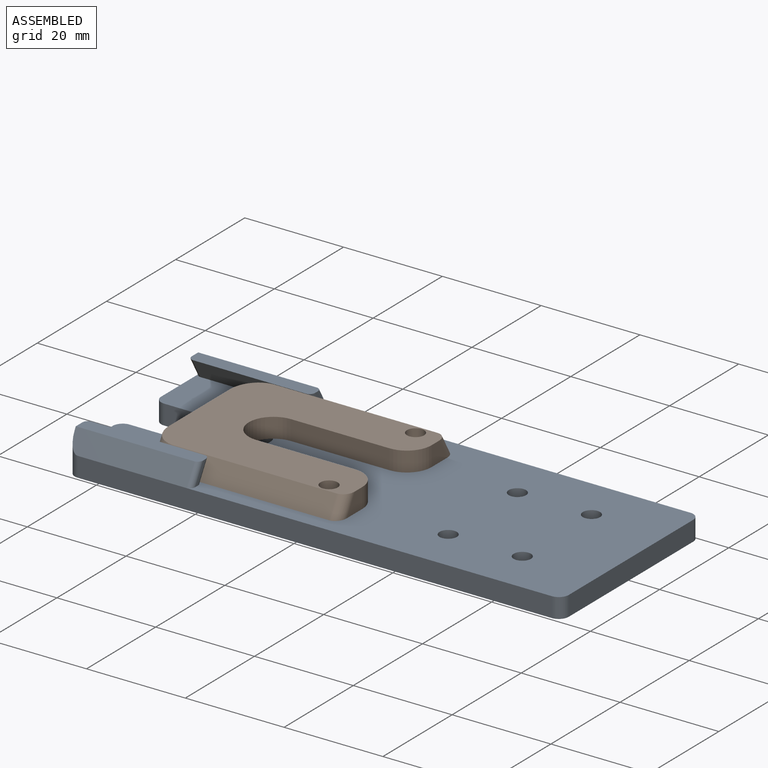
[diagram: assembled view]
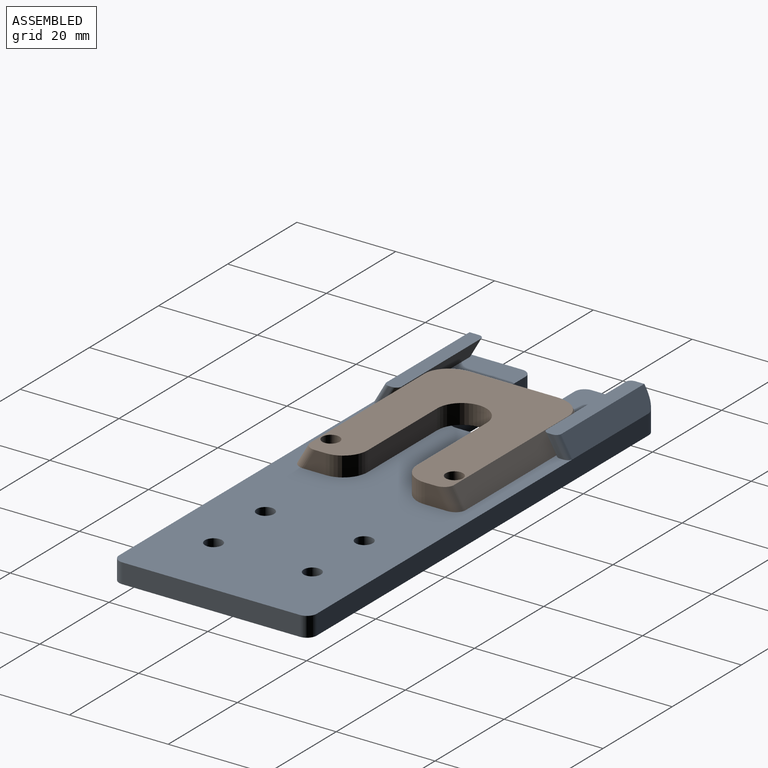
[diagram: assembled view, second angle]
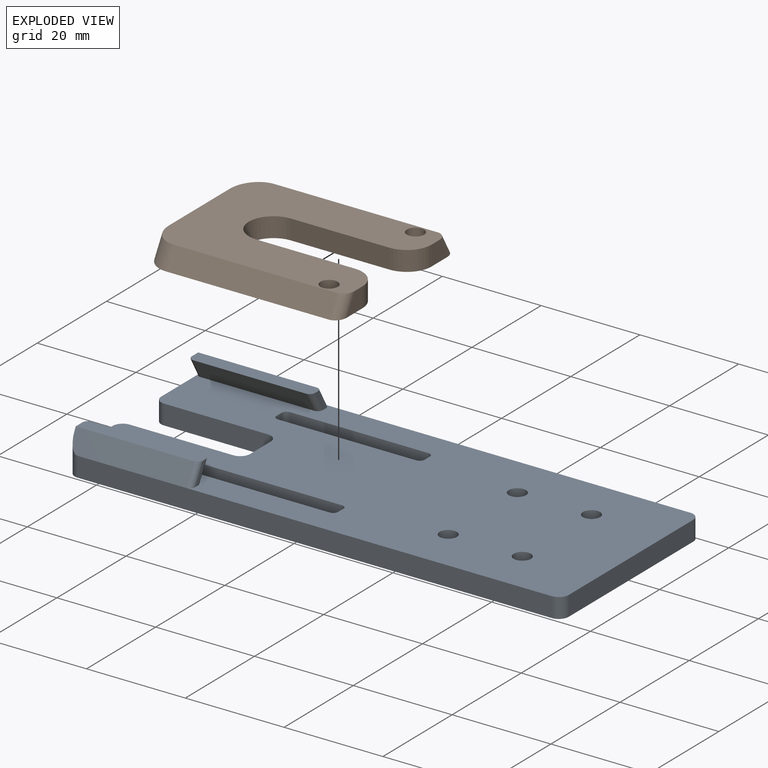
[diagram: exploded view]
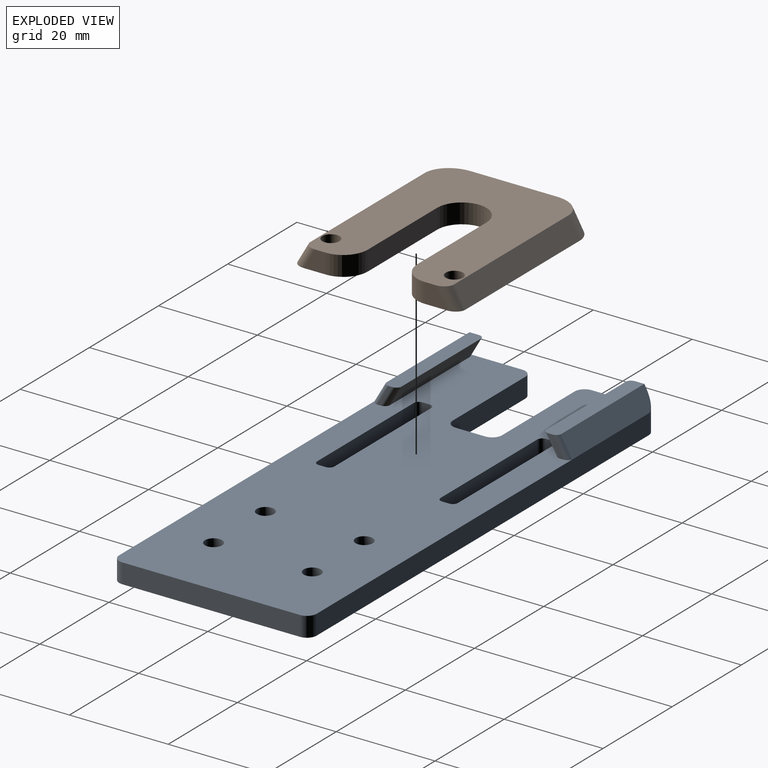
[diagram: exploded view, second angle]
ASSEMBLY  parts=2 mates=2
PART A: 54 faces, bbox 100x40x8.5 mm
  f0: plane 11x4mm, normal (-1,0,0), area 44mm2, adj f2,f3,f36,f38
  f1: plane 3.73x2.15mm, normal (-1,0,0), area 3.9mm2, adj f28,f30,f34,f48
  f2: plane 100x40mm, normal (0,0,1), area 3353mm2, adj f0,f4,f6,f7,f8,f9,f10,f11
  f3: plane 100x40mm, normal (0,0,-1), area 3499.8mm2, adj f0,f4,f6,f7,f8,f9,f10,f11
  f4: plane 96x4mm, normal (0,1,0), area 384mm2, adj f2,f3,f15,f38,f39
  f5: plane 3.73x2.15mm, normal (-1,0,0), area 3.9mm2, adj f15,f17,f38,f51
  f6: plane 36x4mm, normal (1,0,0), area 144mm2, adj f2,f3,f35,f39
  f7: plane 21x4mm, normal (0,-1,0), area 84mm2, adj f2,f3,f36,f37
  f8: plane 6x4mm, normal (-1,0,0), area 24mm2, adj f2,f3,f33,f37
  f9: cylinder r=1.75mm len=4mm, axis (0,0,1), area 44mm2, adj f2,f3
  f10: cylinder r=1.75mm len=4mm, axis (0,0,1), area 44mm2, adj f2,f3
  f11: plane 28x4mm, normal (0,-1,0), area 112mm2, adj f2,f3,f44,f47
  f12: plane 4x1.5mm, normal (1,0,0), area 6mm2, adj f2,f3,f44,f45
  f13: plane 28x4mm, normal (0,1,0), area 112mm2, adj f2,f3,f45,f46
  f14: plane 4x1.5mm, normal (-1,0,0), area 6mm2, adj f2,f3,f46,f47
  f15: plane 24x4mm, normal (0,0.87,0.5), area 109.1mm2, adj f4,f5,f17,f38,f53
  f16: plane 23x4mm, normal (0,-0.87,-0.5), area 106.2mm2, adj f2,f17,f51,f52
  f17: plane 25x3mm, normal (0,0,1), area 74.3mm2, adj f5,f15,f16,f18,f51,f52,f53
  f18: plane 4x3mm, normal (1,0,0), area 2.8mm2, adj f2,f17,f52,f53
  f19: plane 96x4mm, normal (0,-1,0), area 384mm2, adj f2,f3,f28,f34,f35
  f20: plane 11x4mm, normal (-1,0,0), area 44mm2, adj f2,f3,f32,f34
  f21: plane 21x4mm, normal (0,1,0), area 84mm2, adj f2,f3,f32,f33
  f22: cylinder r=1.75mm len=4mm, axis (0,0,1), area 44mm2, adj f2,f3
  f23: cylinder r=1.75mm len=4mm, axis (0,0,1), area 44mm2, adj f2,f3
  f24: plane 28x4mm, normal (0,1,0), area 112mm2, adj f2,f3,f41,f43
  f25: plane 4x1.5mm, normal (1,0,0), area 6mm2, adj f2,f3,f42,f43
  f26: plane 28x4mm, normal (0,-1,0), area 112mm2, adj f2,f3,f40,f42
  f27: plane 4x1.5mm, normal (-1,0,0), area 6mm2, adj f2,f3,f40,f41
  f28: plane 24x4mm, normal (0,-0.87,0.5), area 109.1mm2, adj f1,f19,f30,f34,f50
  f29: plane 23x4mm, normal (0,0.87,-0.5), area 106.2mm2, adj f2,f30,f48,f49
  f30: plane 25x3mm, normal (0,0,1), area 74.3mm2, adj f1,f28,f29,f31,f48,f49,f50
  f31: plane 4x3mm, normal (1,0,0), area 2.8mm2, adj f2,f30,f49,f50
  f32: cylinder r=2mm len=4mm, axis (0,0,-1), area 12.6mm2, adj f2,f3,f20,f21
  f33: cylinder r=2mm len=4mm, axis (0,0,1), area 12.6mm2, adj f2,f3,f8,f21
  f34: cylinder r=2mm len=7.46mm, axis (0,0,1), area 16.5mm2, adj f1,f2,f3,f19,f20,f28,f48
  f35: cylinder r=2mm len=4mm, axis (0,0,-1), area 12.6mm2, adj f2,f3,f6,f19
  f36: cylinder r=2mm len=4mm, axis (0,0,-1), area 12.6mm2, adj f0,f2,f3,f7
  f37: cylinder r=2mm len=4mm, axis (0,0,1), area 12.6mm2, adj f2,f3,f7,f8
  f38: cylinder r=2mm len=7.46mm, axis (0,0,1), area 16.5mm2, adj f0,f2,f3,f4,f5,f15,f51
  f39: cylinder r=2mm len=4mm, axis (0,0,-1), area 12.6mm2, adj f2,f3,f4,f6
  f40: cylinder r=1mm len=4mm, axis (0,0,1), area 6.3mm2, adj f2,f3,f26,f27
  f41: cylinder r=1mm len=4mm, axis (0,0,-1), area 6.3mm2, adj f2,f3,f24,f27
  f42: cylinder r=1mm len=4mm, axis (0,0,-1), area 6.3mm2, adj f2,f3,f25,f26
  f43: cylinder r=1mm len=4mm, axis (0,0,1), area 6.3mm2, adj f2,f3,f24,f25
  f44: cylinder r=1mm len=4mm, axis (0,0,1), area 6.3mm2, adj f2,f3,f11,f12
  f45: cylinder r=1mm len=4mm, axis (0,0,-1), area 6.3mm2, adj f2,f3,f12,f13
  f46: cylinder r=1mm len=4mm, axis (0,0,1), area 6.3mm2, adj f2,f3,f13,f14
  f47: cylinder r=1mm len=4mm, axis (0,0,-1), area 6.3mm2, adj f2,f3,f11,f14
  f48: cylinder r=1mm len=4.97mm, axis (0,-0.5,-0.87), area 7.2mm2, adj f1,f2,f29,f30,f34
  f49: cylinder r=1mm len=5mm, axis (0,-0.5,-0.87), area 7.3mm2, adj f2,f29,f30,f31
  f50: cylinder r=1mm len=5mm, axis (0,0.5,0.87), area 7.3mm2, adj f2,f28,f30,f31
  f51: cylinder r=1mm len=4.97mm, axis (0,0.5,-0.87), area 7.2mm2, adj f2,f5,f16,f17,f38
  f52: cylinder r=1mm len=5mm, axis (0,0.5,-0.87), area 7.3mm2, adj f2,f16,f17,f18
  f53: cylinder r=1mm len=5mm, axis (0,-0.5,0.87), area 7.3mm2, adj f2,f15,f17,f18
PART B: 18 faces, bbox 33.7x40x9 mm
  f0: plane 40x33.7mm, normal (0,0,-1), area 1014.4mm2, adj f1,f3,f4,f5,f6,f7,f8,f9
  f1: plane 33x4mm, normal (0.87,0,0.5), area 152.4mm2, adj f0,f2,f15,f17
  f2: plane 40x29.08mm, normal (0,0,1), area 829.6mm2, adj f1,f3,f4,f5,f6,f7,f8,f9
  f3: plane 22.15x4mm, normal (0,-1,0), area 79.4mm2, adj f0,f2,f13,f15
  f4: plane 4.54x4mm, normal (0,1,0), area 13.5mm2, adj f0,f2,f14,f17
  f5: cylinder r=1.75mm len=4mm, axis (0,0,1), area 44mm2, adj f0,f2
  f6: plane 20x4mm, normal (-1,0,0), area 80mm2, adj f0,f2,f12,f14
  f7: plane 33x4mm, normal (-0.87,0,0.5), area 152.4mm2, adj f0,f2,f13,f16
  f8: plane 4.54x4mm, normal (0,1,0), area 13.5mm2, adj f0,f2,f11,f16
  f9: cylinder r=1.75mm len=4mm, axis (0,0,1), area 44mm2, adj f0,f2
  f10: plane 20x4mm, normal (1,0,0), area 80mm2, adj f0,f2,f11,f12
  f11: cylinder r=5mm len=5mm, axis (0,0,-1), area 31.4mm2, adj f0,f2,f8,f10
  f12: cylinder r=5mm len=10mm, axis (0,0,1), area 62.8mm2, adj f0,f2,f6,f10
  f13: cylinder r=5mm len=9mm, axis (-0.5,0,-0.87), area 36.3mm2, adj f0,f2,f3,f7
  f14: cylinder r=5mm len=5mm, axis (0,0,-1), area 31.4mm2, adj f0,f2,f4,f6
  f15: cylinder r=5mm len=9mm, axis (0.5,0,-0.87), area 36.3mm2, adj f0,f1,f2,f3
  f16: cylinder r=2mm len=6mm, axis (0.5,0,0.87), area 14.5mm2, adj f0,f2,f7,f8
  f17: cylinder r=2mm len=6mm, axis (-0.5,0,0.87), area 14.5mm2, adj f0,f1,f2,f4
PLACE A t=(-14.2,-2.27,2.44)mm
PLACE B rot(axis=(0,0,-1),90deg) t=(-11.61,-2.21,6.44)mm
MATE planar B.f0 <-> A.f2  axis (0,0,-1) through (-33.47,-2.21,6.44)mm
MATE parallel B.f3 <-> A.f20  axis (-1,0,0) through (-51.61,-2.21,8.36)mm
